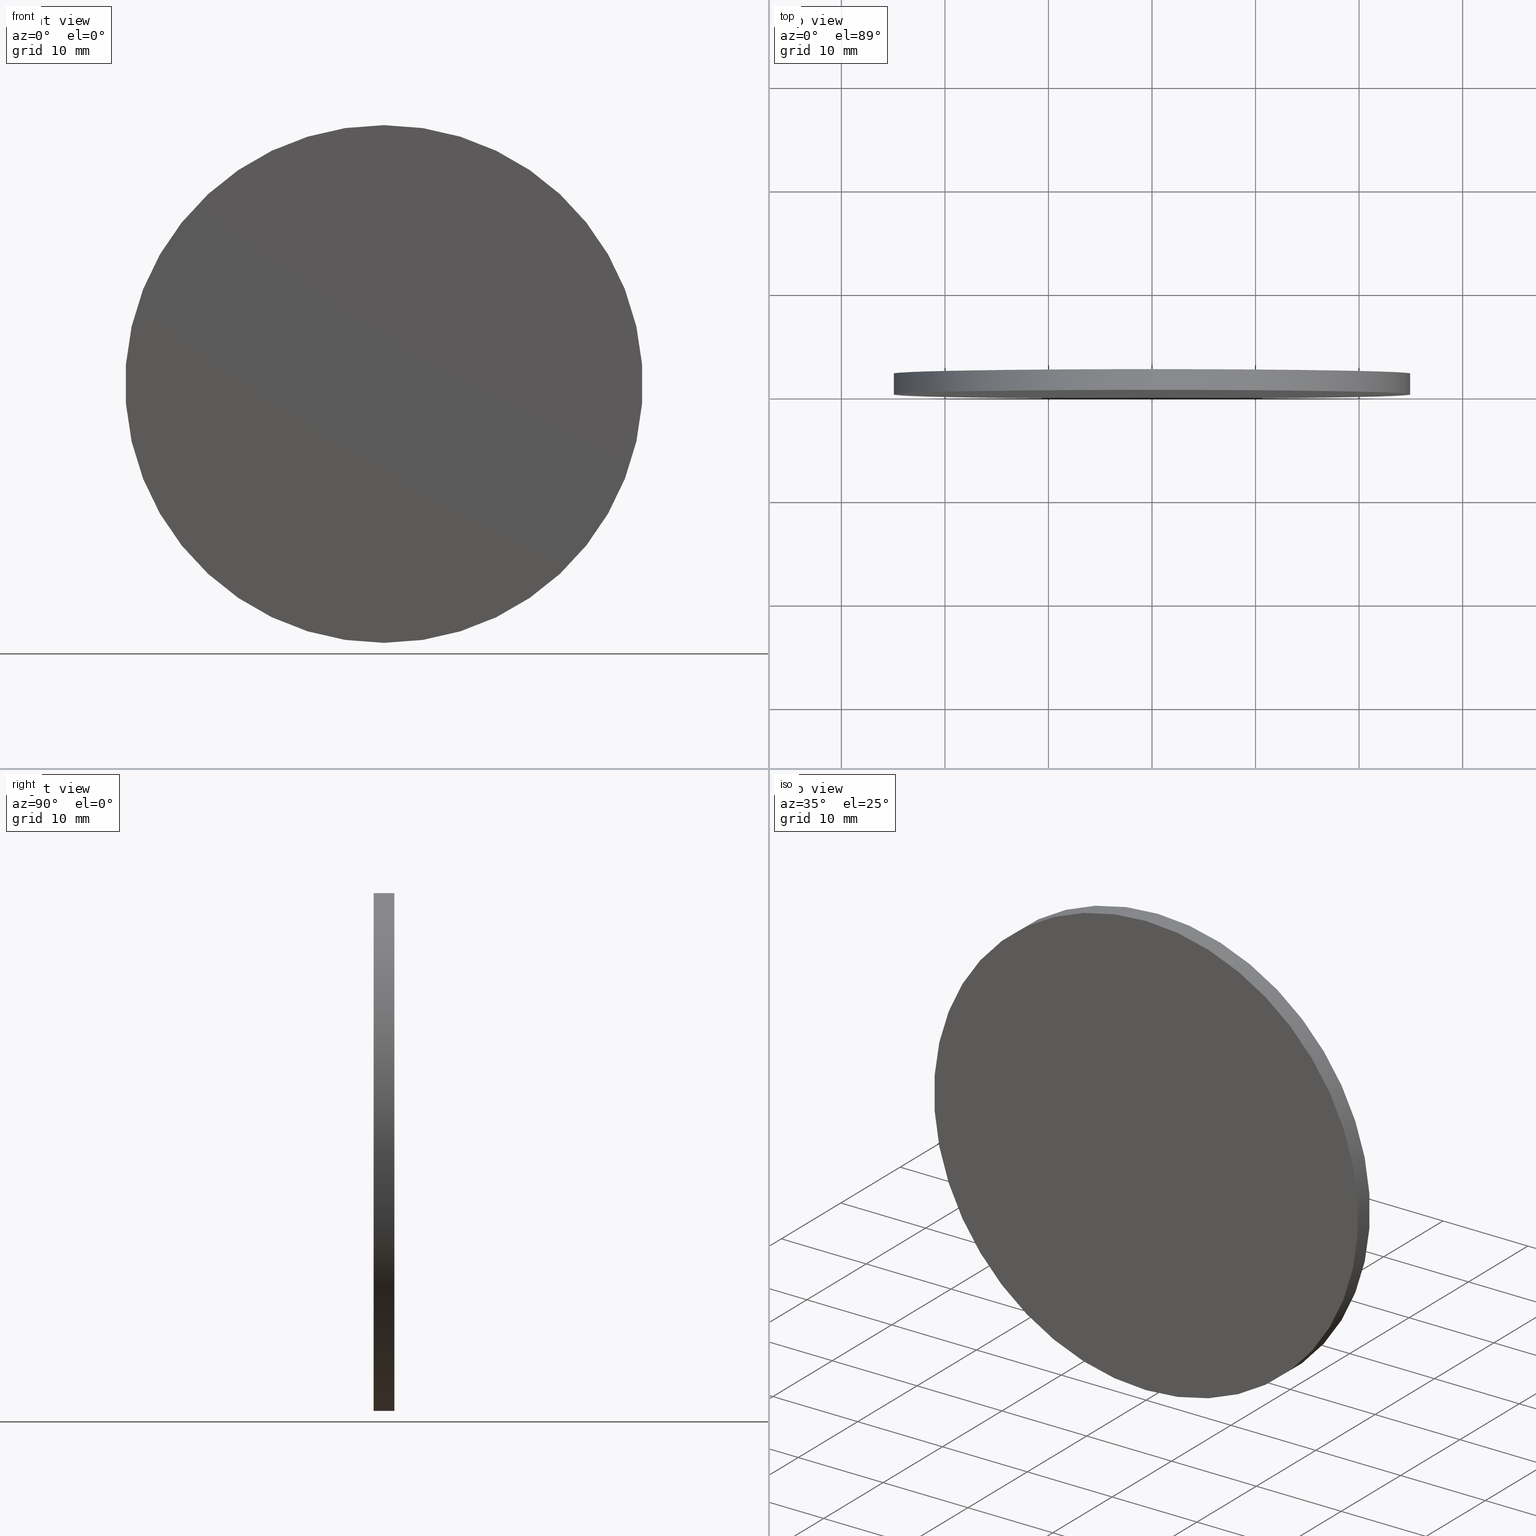
[diagram: canonical four-view strip — front | top / right | iso, engineering-drawing reading convention]
A machine part, canonical four-view strip (front | top / right | iso — engineering-drawing reading convention). The complete STEP part file that produces these views, byte-faithful:
ISO-10303-21;
HEADER;
FILE_DESCRIPTION (( 'STEP AP214' ),
    '1' );
FILE_NAME ('258514.STEP',
    '2019-08-07T02:24:03',
    ( 'user' ),
    ( '΢���й�' ),
    'SwSTEP 2.0',
    'SolidWorks 2016',
    '' );
FILE_SCHEMA (( 'AUTOMOTIVE_DESIGN' ));
ENDSEC;

DATA;
#1 =( NAMED_UNIT ( * ) PLANE_ANGLE_UNIT ( ) SI_UNIT ( $, .RADIAN. ) );
#2 = DIRECTION ( 'NONE',  ( 0.0000000000000000000, 1.000000000000000000, 0.0000000000000000000 ) ) ;
#3 = EDGE_CURVE ( 'NONE', #49, #126, #128, .T. ) ;
#4 = DIRECTION ( 'NONE',  ( 0.0000000000000000000, -0.0000000000000000000, 1.000000000000000000 ) ) ;
#5 = FILL_AREA_STYLE_COLOUR ( '', #97 ) ;
#6 =( NAMED_UNIT ( * ) PLANE_ANGLE_UNIT ( ) SI_UNIT ( $, .RADIAN. ) );
#7 = PRESENTATION_STYLE_ASSIGNMENT (( #16 ) ) ;
#8 = APPLICATION_PROTOCOL_DEFINITION ( 'draft international standard', 'automotive_design', 1998, #20 ) ;
#9 = ORIENTED_EDGE ( 'NONE', *, *, #3, .F. ) ;
#10 = CYLINDRICAL_SURFACE ( 'NONE', #77, 25.00000000000000000 ) ;
#11 = ORIENTED_EDGE ( 'NONE', *, *, #21, .T. ) ;
#12 = FACE_OUTER_BOUND ( 'NONE', #22, .T. ) ;
#13 = STYLED_ITEM ( 'NONE', ( #7 ), #110 ) ;
#14 =( NAMED_UNIT ( * ) SI_UNIT ( $, .STERADIAN. ) SOLID_ANGLE_UNIT ( ) );
#15 = CARTESIAN_POINT ( 'NONE',  ( 0.0000000000000000000, 2.000000000000000000, 0.0000000000000000000 ) ) ;
#16 = SURFACE_STYLE_USAGE ( .BOTH. , #81 ) ;
#17 = DIRECTION ( 'NONE',  ( 0.0000000000000000000, 1.000000000000000000, 0.0000000000000000000 ) ) ;
#18 = CARTESIAN_POINT ( 'NONE',  ( 0.0000000000000000000, 2.000000000000000000, -25.00000000000000000 ) ) ;
#19 = CIRCLE ( 'NONE', #33, 25.00000000000000000 ) ;
#20 = APPLICATION_CONTEXT ( 'automotive_design' ) ;
#21 = EDGE_CURVE ( 'NONE', #126, #41, #43, .T. ) ;
#22 = EDGE_LOOP ( 'NONE', ( #85, #78 ) ) ;
#23 = PRESENTATION_LAYER_ASSIGNMENT (  '', '', ( #13 ) ) ;
#24 = EDGE_LOOP ( 'NONE', ( #79, #135, #91, #11 ) ) ;
#25 = DIRECTION ( 'NONE',  ( 1.000000000000000000, 0.0000000000000000000, 0.0000000000000000000 ) ) ;
#26 = DIRECTION ( 'NONE',  ( 0.0000000000000000000, -0.0000000000000000000, 1.000000000000000000 ) ) ;
#27 = CARTESIAN_POINT ( 'NONE',  ( 0.0000000000000000000, 2.000000000000000000, 0.0000000000000000000 ) ) ;
#28 =( LENGTH_UNIT ( ) NAMED_UNIT ( * ) SI_UNIT ( .MILLI., .METRE. ) );
#29 = VERTEX_POINT ( 'NONE', #74 ) ;
#30 = EDGE_CURVE ( 'NONE', #29, #49, #19, .T. ) ;
#31 = SURFACE_STYLE_FILL_AREA ( #127 ) ;
#32 = CARTESIAN_POINT ( 'NONE',  ( 0.0000000000000000000, 0.0000000000000000000, -25.00000000000000000 ) ) ;
#33 = AXIS2_PLACEMENT_3D ( 'NONE', #37, #84, #121 ) ;
#34 = DIRECTION ( 'NONE',  ( 0.0000000000000000000, 0.0000000000000000000, 1.000000000000000000 ) ) ;
#35 = DIRECTION ( 'NONE',  ( -0.0000000000000000000, -1.000000000000000000, -0.0000000000000000000 ) ) ;
#36 = PLANE ( 'NONE',  #73 ) ;
#37 = CARTESIAN_POINT ( 'NONE',  ( 0.0000000000000000000, 2.000000000000000000, 0.0000000000000000000 ) ) ;
#38 = SHAPE_DEFINITION_REPRESENTATION ( #68, #82 ) ;
#39 = MECHANICAL_DESIGN_GEOMETRIC_PRESENTATION_REPRESENTATION (  '', ( #13 ), #44 ) ;
#40 = UNCERTAINTY_MEASURE_WITH_UNIT (LENGTH_MEASURE( 1.000000000000000100E-005 ), #104, 'distance_accuracy_value', 'NONE');
#41 = VERTEX_POINT ( 'NONE', #80 ) ;
#42 = FACE_OUTER_BOUND ( 'NONE', #24, .T. ) ;
#43 = CIRCLE ( 'NONE', #105, 25.00000000000000000 ) ;
#44 =( GEOMETRIC_REPRESENTATION_CONTEXT ( 3 ) GLOBAL_UNCERTAINTY_ASSIGNED_CONTEXT ( ( #40 ) ) GLOBAL_UNIT_ASSIGNED_CONTEXT ( ( #104, #6, #14 ) ) REPRESENTATION_CONTEXT ( 'NONE', 'WORKASPACE' ) );
#45 = DIRECTION ( 'NONE',  ( 0.0000000000000000000, 1.000000000000000000, 0.0000000000000000000 ) ) ;
#46 =( NAMED_UNIT ( * ) PLANE_ANGLE_UNIT ( ) SI_UNIT ( $, .RADIAN. ) );
#47 = PLANE ( 'NONE',  #55 ) ;
#48 = EDGE_CURVE ( 'NONE', #41, #126, #129, .T. ) ;
#49 = VERTEX_POINT ( 'NONE', #18 ) ;
#50 = AXIS2_PLACEMENT_3D ( 'NONE', #106, #17, #71 ) ;
#51 = ORIENTED_EDGE ( 'NONE', *, *, #21, .F. ) ;
#52 =( GEOMETRIC_REPRESENTATION_CONTEXT ( 3 ) GLOBAL_UNCERTAINTY_ASSIGNED_CONTEXT ( ( #69 ) ) GLOBAL_UNIT_ASSIGNED_CONTEXT ( ( #28, #1, #137 ) ) REPRESENTATION_CONTEXT ( 'NONE', 'WORKASPACE' ) );
#53 = EDGE_CURVE ( 'NONE', #49, #29, #76, .T. ) ;
#54 = ADVANCED_FACE ( 'NONE', ( #12 ), #47, .T. ) ;
#55 = AXIS2_PLACEMENT_3D ( 'NONE', #72, #2, #4 ) ;
#56 = DIRECTION ( 'NONE',  ( 0.0000000000000000000, 0.0000000000000000000, -1.000000000000000000 ) ) ;
#57 = SURFACE_STYLE_USAGE ( .BOTH. , #132 ) ;
#58 = CARTESIAN_POINT ( 'NONE',  ( 0.0000000000000000000, 0.0000000000000000000, 0.0000000000000000000 ) ) ;
#59 = CARTESIAN_POINT ( 'NONE',  ( 0.0000000000000000000, 0.0000000000000000000, 0.0000000000000000000 ) ) ;
#60 = CARTESIAN_POINT ( 'NONE',  ( 0.0000000000000000000, 0.0000000000000000000, 0.0000000000000000000 ) ) ;
#61 = STYLED_ITEM ( 'NONE', ( #62 ), #82 ) ;
#62 = PRESENTATION_STYLE_ASSIGNMENT (( #57 ) ) ;
#63 = SURFACE_STYLE_FILL_AREA ( #75 ) ;
#64 = AXIS2_PLACEMENT_3D ( 'NONE', #27, #83, #115 ) ;
#65 = CARTESIAN_POINT ( 'NONE',  ( 0.0000000000000000000, 2.000000000000000000, -25.00000000000000000 ) ) ;
#66 = FACE_OUTER_BOUND ( 'NONE', #89, .T. ) ;
#67 = AXIS2_PLACEMENT_3D ( 'NONE', #133, #136, #123 ) ;
#68 = PRODUCT_DEFINITION_SHAPE ( 'NONE', 'NONE',  #125 ) ;
#69 = UNCERTAINTY_MEASURE_WITH_UNIT (LENGTH_MEASURE( 1.000000000000000100E-005 ), #28, 'distance_accuracy_value', 'NONE');
#70 = ORIENTED_EDGE ( 'NONE', *, *, #48, .T. ) ;
#71 = DIRECTION ( 'NONE',  ( 0.0000000000000000000, 0.0000000000000000000, 1.000000000000000000 ) ) ;
#72 = CARTESIAN_POINT ( 'NONE',  ( 0.0000000000000000000, 2.000000000000000000, 0.0000000000000000000 ) ) ;
#73 = AXIS2_PLACEMENT_3D ( 'NONE', #58, #45, #26 ) ;
#74 = CARTESIAN_POINT ( 'NONE',  ( 3.061616997868383000E-015, 2.000000000000000000, 25.00000000000000000 ) ) ;
#75 = FILL_AREA_STYLE ('',( #5 ) ) ;
#76 = CIRCLE ( 'NONE', #64, 25.00000000000000000 ) ;
#77 = AXIS2_PLACEMENT_3D ( 'NONE', #15, #99, #56 ) ;
#78 = ORIENTED_EDGE ( 'NONE', *, *, #30, .T. ) ;
#79 = ORIENTED_EDGE ( 'NONE', *, *, #100, .F. ) ;
#80 = CARTESIAN_POINT ( 'NONE',  ( 3.061616997868383000E-015, 0.0000000000000000000, 25.00000000000000000 ) ) ;
#81 = SURFACE_SIDE_STYLE ('',( #31 ) ) ;
#82 = ADVANCED_BREP_SHAPE_REPRESENTATION ( '258514', ( #110, #112 ), #52 ) ;
#83 = DIRECTION ( 'NONE',  ( 0.0000000000000000000, 1.000000000000000000, 0.0000000000000000000 ) ) ;
#84 = DIRECTION ( 'NONE',  ( 0.0000000000000000000, 1.000000000000000000, 0.0000000000000000000 ) ) ;
#85 = ORIENTED_EDGE ( 'NONE', *, *, #53, .T. ) ;
#86 = APPLICATION_CONTEXT ( 'automotive_design' ) ;
#87 = PRODUCT_CONTEXT ( 'NONE', #86, 'mechanical' ) ;
#88 = PRESENTATION_LAYER_ASSIGNMENT (  '', '', ( #61 ) ) ;
#89 = EDGE_LOOP ( 'NONE', ( #111, #114, #70, #9 ) ) ;
#90 = MECHANICAL_DESIGN_GEOMETRIC_PRESENTATION_REPRESENTATION (  '', ( #61 ), #96 ) ;
#91 = ORIENTED_EDGE ( 'NONE', *, *, #3, .T. ) ;
#92 = FACE_OUTER_BOUND ( 'NONE', #98, .T. ) ;
#93 = ORIENTED_EDGE ( 'NONE', *, *, #48, .F. ) ;
#94 = LINE ( 'NONE', #108, #122 ) ;
#95 = ADVANCED_FACE ( 'NONE', ( #66 ), #10, .T. ) ;
#96 =( GEOMETRIC_REPRESENTATION_CONTEXT ( 3 ) GLOBAL_UNCERTAINTY_ASSIGNED_CONTEXT ( ( #140 ) ) GLOBAL_UNIT_ASSIGNED_CONTEXT ( ( #118, #46, #107 ) ) REPRESENTATION_CONTEXT ( 'NONE', 'WORKASPACE' ) );
#97 = COLOUR_RGB ( '',1.000000000000000000, 1.000000000000000000, 1.000000000000000000 ) ;
#98 = EDGE_LOOP ( 'NONE', ( #51, #93 ) ) ;
#99 = DIRECTION ( 'NONE',  ( -0.0000000000000000000, -1.000000000000000000, -0.0000000000000000000 ) ) ;
#100 = EDGE_CURVE ( 'NONE', #29, #41, #94, .T. ) ;
#101 = DIRECTION ( 'NONE',  ( 0.0000000000000000000, 0.0000000000000000000, 1.000000000000000000 ) ) ;
#102 = PRODUCT ( '258514', '258514', '', ( #87 ) ) ;
#103 = VECTOR ( 'NONE', #131, 1000.000000000000000 ) ;
#104 =( LENGTH_UNIT ( ) NAMED_UNIT ( * ) SI_UNIT ( .MILLI., .METRE. ) );
#105 = AXIS2_PLACEMENT_3D ( 'NONE', #59, #134, #101 ) ;
#106 = CARTESIAN_POINT ( 'NONE',  ( 0.0000000000000000000, 0.0000000000000000000, 0.0000000000000000000 ) ) ;
#107 =( NAMED_UNIT ( * ) SI_UNIT ( $, .STERADIAN. ) SOLID_ANGLE_UNIT ( ) );
#108 = CARTESIAN_POINT ( 'NONE',  ( 3.061616997868383000E-015, 2.000000000000000000, 25.00000000000000000 ) ) ;
#109 = ADVANCED_FACE ( 'NONE', ( #92 ), #36, .F. ) ;
#110 = MANIFOLD_SOLID_BREP ( '͹̨-����1', #119 ) ;
#111 = ORIENTED_EDGE ( 'NONE', *, *, #30, .F. ) ;
#112 = AXIS2_PLACEMENT_3D ( 'NONE', #60, #34, #25 ) ;
#113 = CYLINDRICAL_SURFACE ( 'NONE', #67, 25.00000000000000000 ) ;
#114 = ORIENTED_EDGE ( 'NONE', *, *, #100, .T. ) ;
#115 = DIRECTION ( 'NONE',  ( 0.0000000000000000000, 0.0000000000000000000, 1.000000000000000000 ) ) ;
#116 = COLOUR_RGB ( '',1.000000000000000000, 1.000000000000000000, 1.000000000000000000 ) ;
#117 = PRODUCT_DEFINITION_CONTEXT ( 'detailed design', #20, 'design' ) ;
#118 =( LENGTH_UNIT ( ) NAMED_UNIT ( * ) SI_UNIT ( .MILLI., .METRE. ) );
#119 = CLOSED_SHELL ( 'NONE', ( #95, #138, #54, #109 ) ) ;
#120 = FILL_AREA_STYLE_COLOUR ( '', #116 ) ;
#121 = DIRECTION ( 'NONE',  ( 0.0000000000000000000, 0.0000000000000000000, 1.000000000000000000 ) ) ;
#122 = VECTOR ( 'NONE', #35, 1000.000000000000000 ) ;
#123 = DIRECTION ( 'NONE',  ( 0.0000000000000000000, 0.0000000000000000000, -1.000000000000000000 ) ) ;
#124 = APPLICATION_PROTOCOL_DEFINITION ( 'draft international standard', 'automotive_design', 1998, #86 ) ;
#125 = PRODUCT_DEFINITION ( 'δ֪', '', #130, #117 ) ;
#126 = VERTEX_POINT ( 'NONE', #32 ) ;
#127 = FILL_AREA_STYLE ('',( #120 ) ) ;
#128 = LINE ( 'NONE', #65, #103 ) ;
#129 = CIRCLE ( 'NONE', #50, 25.00000000000000000 ) ;
#130 = PRODUCT_DEFINITION_FORMATION_WITH_SPECIFIED_SOURCE ( '�κ�', '', #102, .NOT_KNOWN. ) ;
#131 = DIRECTION ( 'NONE',  ( -0.0000000000000000000, -1.000000000000000000, -0.0000000000000000000 ) ) ;
#132 = SURFACE_SIDE_STYLE ('',( #63 ) ) ;
#133 = CARTESIAN_POINT ( 'NONE',  ( 0.0000000000000000000, 2.000000000000000000, 0.0000000000000000000 ) ) ;
#134 = DIRECTION ( 'NONE',  ( 0.0000000000000000000, 1.000000000000000000, 0.0000000000000000000 ) ) ;
#135 = ORIENTED_EDGE ( 'NONE', *, *, #53, .F. ) ;
#136 = DIRECTION ( 'NONE',  ( -0.0000000000000000000, -1.000000000000000000, -0.0000000000000000000 ) ) ;
#137 =( NAMED_UNIT ( * ) SI_UNIT ( $, .STERADIAN. ) SOLID_ANGLE_UNIT ( ) );
#138 = ADVANCED_FACE ( 'NONE', ( #42 ), #113, .T. ) ;
#139 = PRODUCT_RELATED_PRODUCT_CATEGORY ( 'part', '', ( #102 ) ) ;
#140 = UNCERTAINTY_MEASURE_WITH_UNIT (LENGTH_MEASURE( 1.000000000000000100E-005 ), #118, 'distance_accuracy_value', 'NONE');
ENDSEC;
END-ISO-10303-21;
